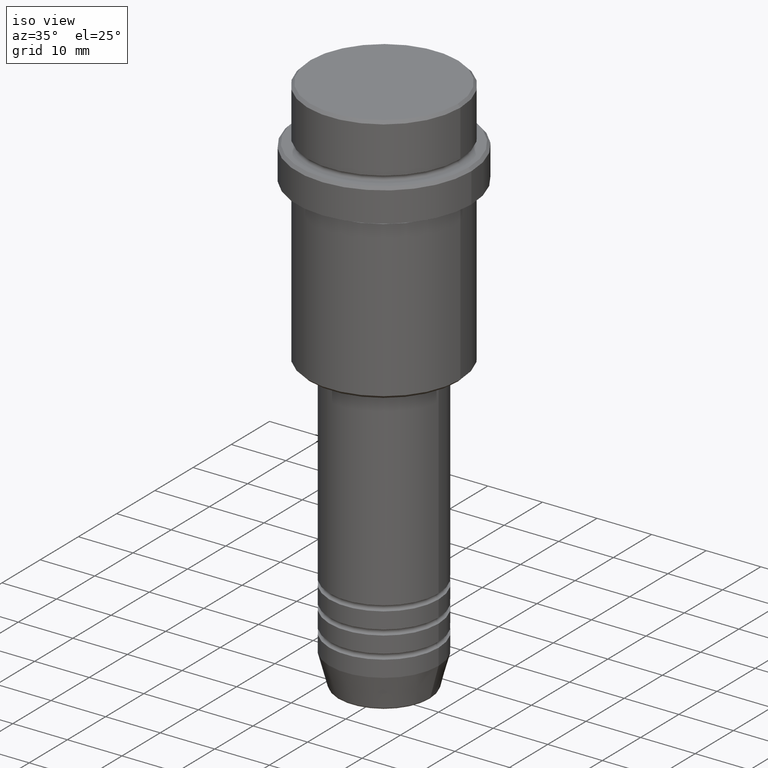
[diagram: clean part render]
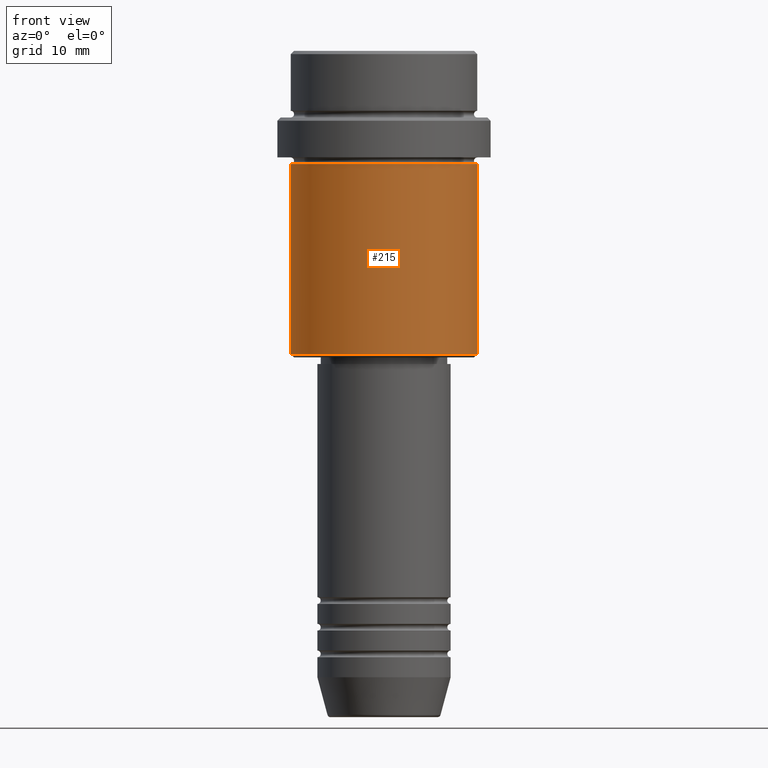
[diagram: tour spotlight — one face highlighted and labeled with its STEP entity id]
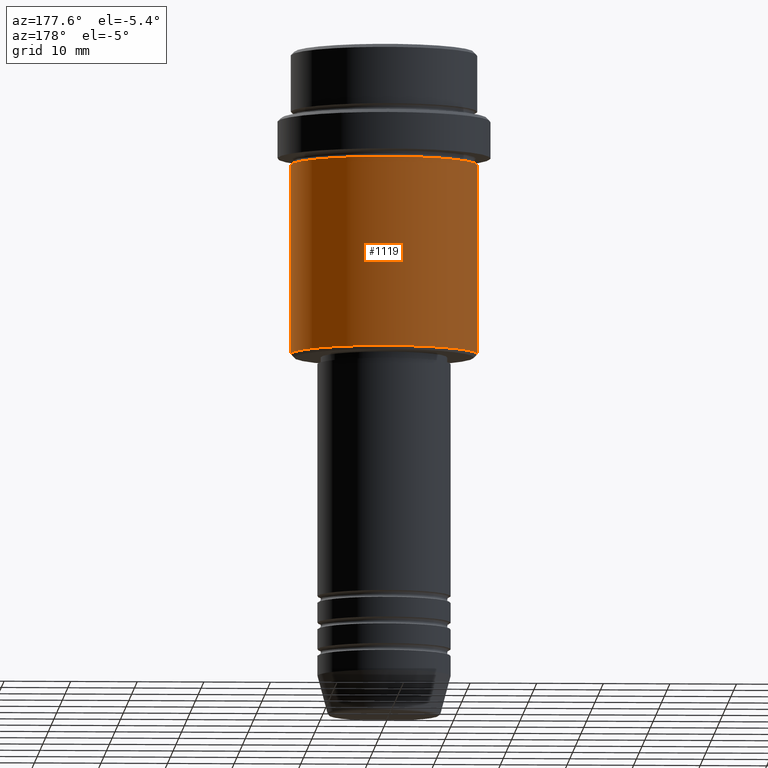
[diagram: tour spotlight — one face highlighted and labeled with its STEP entity id]
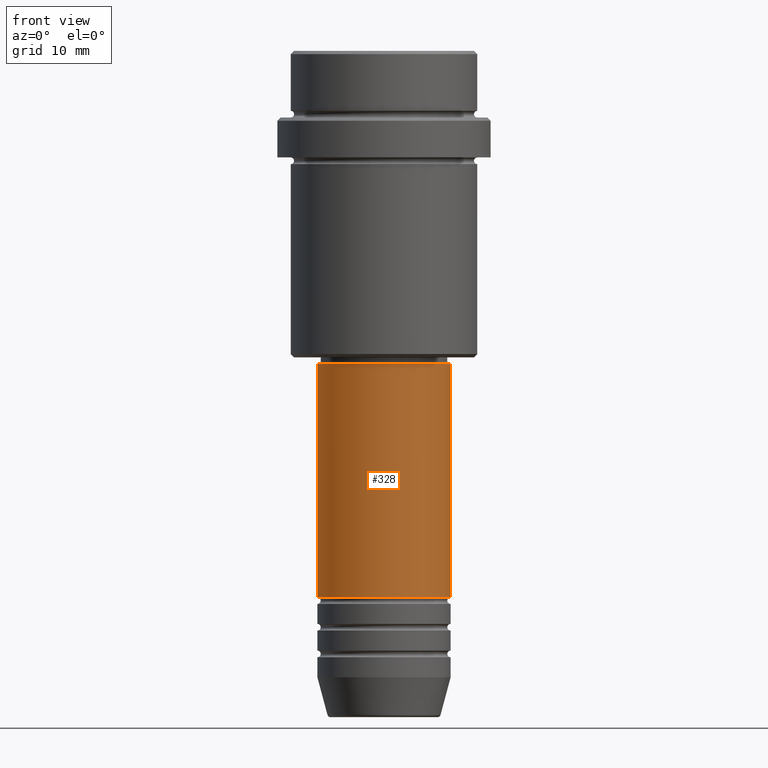
[diagram: tour spotlight — one face highlighted and labeled with its STEP entity id]
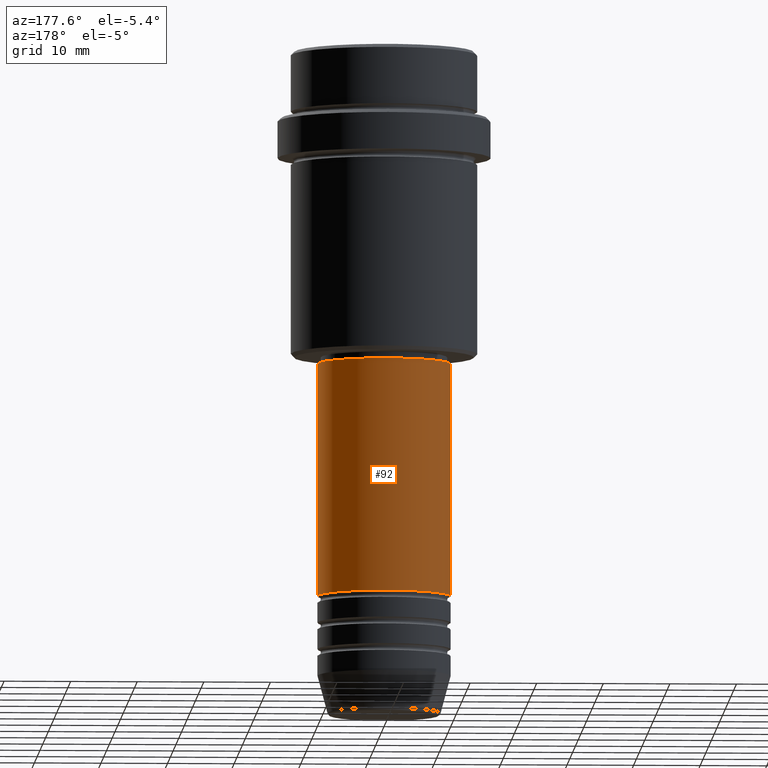
[diagram: tour spotlight — one face highlighted and labeled with its STEP entity id]
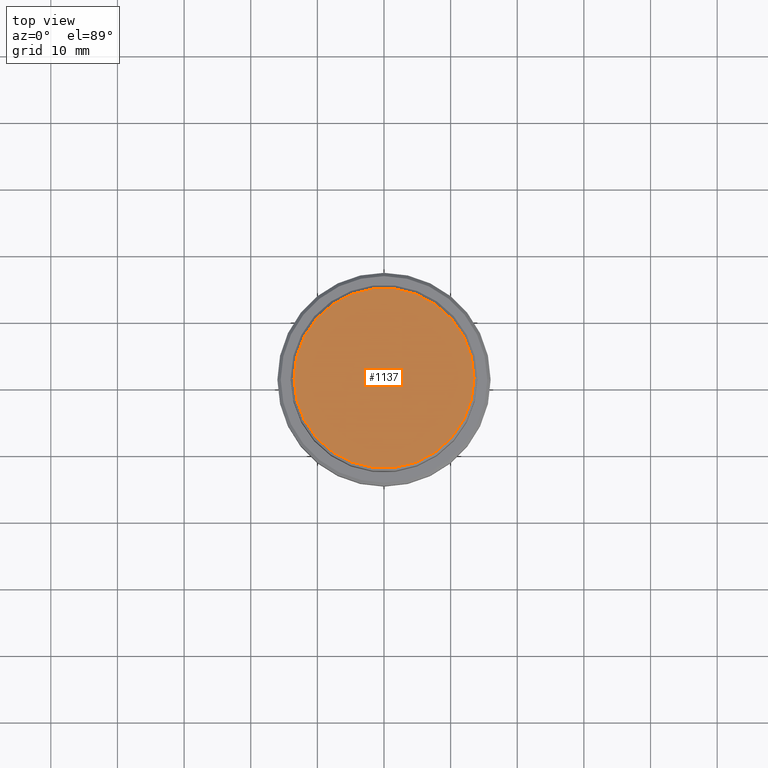
[diagram: tour spotlight — one face highlighted and labeled with its STEP entity id]
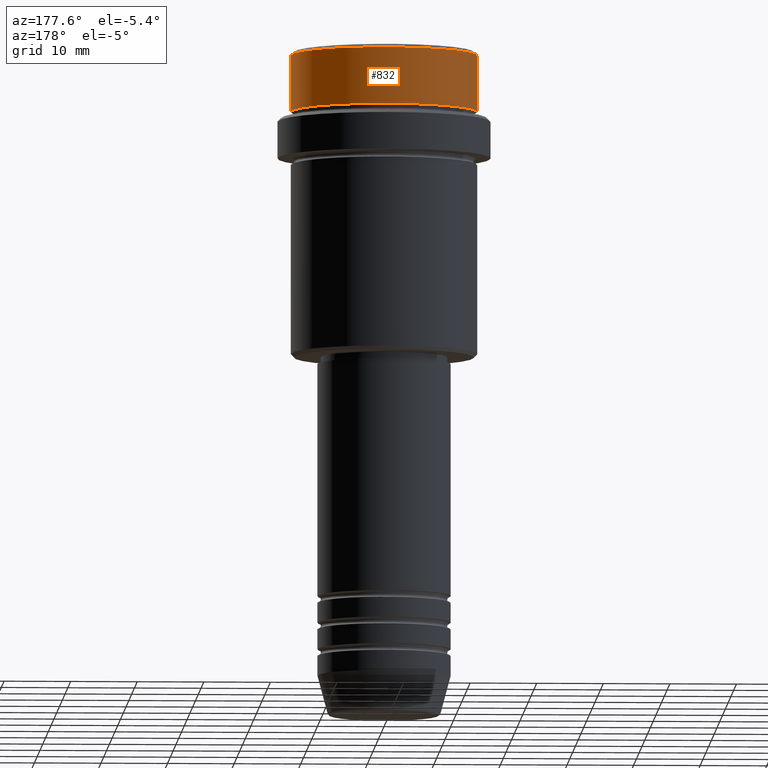
[diagram: tour spotlight — one face highlighted and labeled with its STEP entity id]
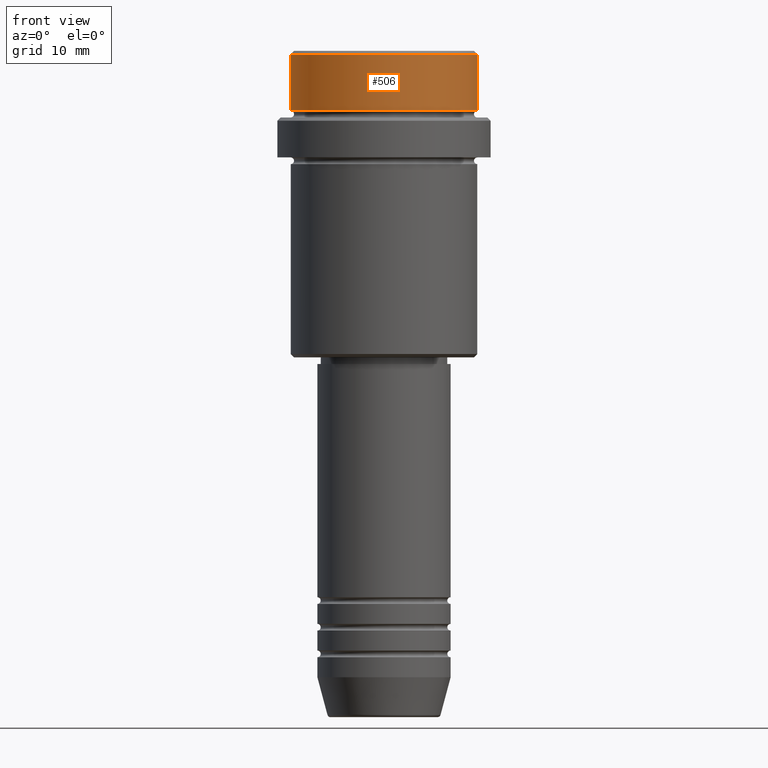
[diagram: tour spotlight — one face highlighted and labeled with its STEP entity id]
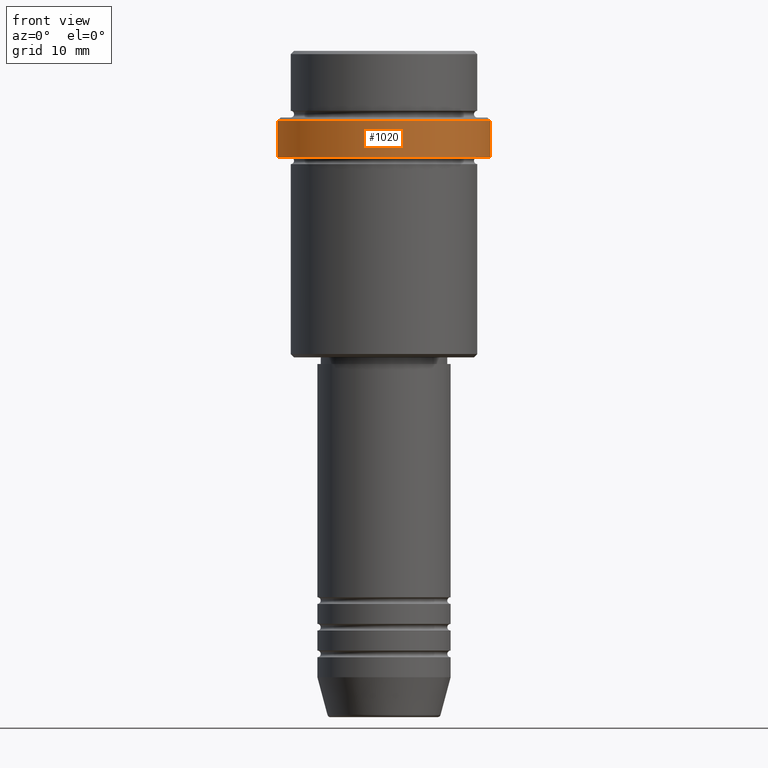
[diagram: tour spotlight — one face highlighted and labeled with its STEP entity id]
A machine part: a face-by-face anatomy tour. The part has 52 B-rep faces; the first image is the clean iso view, then the 8 largest visible faces are spotlighted one at a time (largest first), each with its STEP entity span.

Face 1 — front view, entity #215. In plain terms, the highlighted cylindrical surface (partial cylindrical patch) has radius 14 mm, axis along (-0, -0, 1).
Definition (entity closure, byte-faithful):
#47 = CIRCLE ( 'NONE', #849, 13.99999999999999112 ) ;
#96 = DIRECTION ( 'NONE',  ( -0.000000000000000000, -0.000000000000000000, 1.000000000000000000 ) ) ;
#126 = VERTEX_POINT ( 'NONE', #618 ) ;
#127 = CARTESIAN_POINT ( 'NONE',  ( 13.99999999999999467, 0.000000000000000000, 0.000000000000000000 ) ) ;
#140 = VECTOR ( 'NONE', #714, 1000.000000000000000 ) ;
#168 = VERTEX_POINT ( 'NONE', #399 ) ;
#215 = ADVANCED_FACE ( 'NONE', ( #852 ), #1190, .T. ) ;
#225 = VECTOR ( 'NONE', #1333, 1000.000000000000000 ) ;
#251 = AXIS2_PLACEMENT_3D ( 'NONE', #802, #918, #696 ) ;
#288 = CARTESIAN_POINT ( 'NONE',  ( -13.99999999999999467, 1.714505518806294046E-15, -45.50000000000000000 ) ) ;
#356 = CARTESIAN_POINT ( 'NONE',  ( -13.99999999999999112, 1.714505518806293849E-15, -17.00000000000001066 ) ) ;
#399 = CARTESIAN_POINT ( 'NONE',  ( 13.99999999999999112, 0.000000000000000000, -17.00000000000001066 ) ) ;
#408 = VERTEX_POINT ( 'NONE', #356 ) ;
#516 = DIRECTION ( 'NONE',  ( 1.000000000000000000, 0.000000000000000000, 0.000000000000000000 ) ) ;
#552 = CIRCLE ( 'NONE', #251, 13.99999999999999467 ) ;
#608 = VERTEX_POINT ( 'NONE', #288 ) ;
#614 = ORIENTED_EDGE ( 'NONE', *, *, #762, .F. ) ;
#618 = CARTESIAN_POINT ( 'NONE',  ( 13.99999999999999467, 0.000000000000000000, -45.50000000000000000 ) ) ;
#696 = DIRECTION ( 'NONE',  ( -1.000000000000000000, 0.000000000000000000, 0.000000000000000000 ) ) ;
#714 = DIRECTION ( 'NONE',  ( -0.000000000000000000, -0.000000000000000000, 1.000000000000000000 ) ) ;
#730 = CARTESIAN_POINT ( 'NONE',  ( 0.000000000000000000, 0.000000000000000000, 0.000000000000000000 ) ) ;
#745 = ORIENTED_EDGE ( 'NONE', *, *, #972, .F. ) ;
#759 = CARTESIAN_POINT ( 'NONE',  ( 0.000000000000000000, 0.000000000000000000, -17.00000000000001066 ) ) ;
#762 = EDGE_CURVE ( 'NONE', #408, #168, #47, .T. ) ;
#768 = EDGE_CURVE ( 'NONE', #126, #168, #1195, .T. ) ;
#802 = CARTESIAN_POINT ( 'NONE',  ( 0.000000000000000000, 0.000000000000000000, -45.50000000000000000 ) ) ;
#812 = EDGE_LOOP ( 'NONE', ( #745, #1314, #1015, #614 ) ) ;
#849 = AXIS2_PLACEMENT_3D ( 'NONE', #759, #96, #1201 ) ;
#852 = FACE_OUTER_BOUND ( 'NONE', #812, .T. ) ;
#893 = EDGE_CURVE ( 'NONE', #608, #126, #552, .T. ) ;
#918 = DIRECTION ( 'NONE',  ( -0.000000000000000000, -0.000000000000000000, 1.000000000000000000 ) ) ;
#972 = EDGE_CURVE ( 'NONE', #608, #408, #1041, .T. ) ;
#1015 = ORIENTED_EDGE ( 'NONE', *, *, #768, .T. ) ;
#1041 = LINE ( 'NONE', #1163, #140 ) ;
#1163 = CARTESIAN_POINT ( 'NONE',  ( -13.99999999999999467, 1.714505518806294046E-15, 0.000000000000000000 ) ) ;
#1190 = CYLINDRICAL_SURFACE ( 'NONE', #1369, 13.99999999999999467 ) ;
#1195 = LINE ( 'NONE', #127, #225 ) ;
#1201 = DIRECTION ( 'NONE',  ( 1.000000000000000000, 0.000000000000000000, 0.000000000000000000 ) ) ;
#1281 = DIRECTION ( 'NONE',  ( -0.000000000000000000, -0.000000000000000000, 1.000000000000000000 ) ) ;
#1314 = ORIENTED_EDGE ( 'NONE', *, *, #893, .T. ) ;
#1333 = DIRECTION ( 'NONE',  ( -0.000000000000000000, -0.000000000000000000, 1.000000000000000000 ) ) ;
#1369 = AXIS2_PLACEMENT_3D ( 'NONE', #730, #1281, #516 ) ;

Face 2 — auxiliary view, entity #1119. In plain terms, the highlighted cylindrical surface (partial cylindrical patch) has radius 14 mm, axis along (-0, -0, 1).
Definition (entity closure, byte-faithful):
#8 = EDGE_LOOP ( 'NONE', ( #535, #209, #504, #1087 ) ) ;
#126 = VERTEX_POINT ( 'NONE', #618 ) ;
#127 = CARTESIAN_POINT ( 'NONE',  ( 13.99999999999999467, 0.000000000000000000, 0.000000000000000000 ) ) ;
#140 = VECTOR ( 'NONE', #714, 1000.000000000000000 ) ;
#168 = VERTEX_POINT ( 'NONE', #399 ) ;
#201 = CYLINDRICAL_SURFACE ( 'NONE', #387, 13.99999999999999467 ) ;
#209 = ORIENTED_EDGE ( 'NONE', *, *, #972, .T. ) ;
#225 = VECTOR ( 'NONE', #1333, 1000.000000000000000 ) ;
#288 = CARTESIAN_POINT ( 'NONE',  ( -13.99999999999999467, 1.714505518806294046E-15, -45.50000000000000000 ) ) ;
#294 = CIRCLE ( 'NONE', #432, 13.99999999999999467 ) ;
#338 = FACE_OUTER_BOUND ( 'NONE', #8, .T. ) ;
#356 = CARTESIAN_POINT ( 'NONE',  ( -13.99999999999999112, 1.714505518806293849E-15, -17.00000000000001066 ) ) ;
#387 = AXIS2_PLACEMENT_3D ( 'NONE', #431, #540, #1307 ) ;
#399 = CARTESIAN_POINT ( 'NONE',  ( 13.99999999999999112, 0.000000000000000000, -17.00000000000001066 ) ) ;
#408 = VERTEX_POINT ( 'NONE', #356 ) ;
#431 = CARTESIAN_POINT ( 'NONE',  ( 0.000000000000000000, 0.000000000000000000, 0.000000000000000000 ) ) ;
#432 = AXIS2_PLACEMENT_3D ( 'NONE', #1146, #602, #931 ) ;
#504 = ORIENTED_EDGE ( 'NONE', *, *, #1172, .F. ) ;
#535 = ORIENTED_EDGE ( 'NONE', *, *, #946, .T. ) ;
#540 = DIRECTION ( 'NONE',  ( -0.000000000000000000, -0.000000000000000000, 1.000000000000000000 ) ) ;
#565 = DIRECTION ( 'NONE',  ( -0.000000000000000000, -0.000000000000000000, 1.000000000000000000 ) ) ;
#602 = DIRECTION ( 'NONE',  ( -0.000000000000000000, -0.000000000000000000, 1.000000000000000000 ) ) ;
#608 = VERTEX_POINT ( 'NONE', #288 ) ;
#618 = CARTESIAN_POINT ( 'NONE',  ( 13.99999999999999467, 0.000000000000000000, -45.50000000000000000 ) ) ;
#714 = DIRECTION ( 'NONE',  ( -0.000000000000000000, -0.000000000000000000, 1.000000000000000000 ) ) ;
#734 = AXIS2_PLACEMENT_3D ( 'NONE', #882, #565, #889 ) ;
#768 = EDGE_CURVE ( 'NONE', #126, #168, #1195, .T. ) ;
#882 = CARTESIAN_POINT ( 'NONE',  ( 0.000000000000000000, 0.000000000000000000, -17.00000000000001066 ) ) ;
#889 = DIRECTION ( 'NONE',  ( 1.000000000000000000, 0.000000000000000000, 0.000000000000000000 ) ) ;
#931 = DIRECTION ( 'NONE',  ( -1.000000000000000000, 0.000000000000000000, 0.000000000000000000 ) ) ;
#946 = EDGE_CURVE ( 'NONE', #126, #608, #294, .T. ) ;
#972 = EDGE_CURVE ( 'NONE', #608, #408, #1041, .T. ) ;
#1041 = LINE ( 'NONE', #1163, #140 ) ;
#1087 = ORIENTED_EDGE ( 'NONE', *, *, #768, .F. ) ;
#1119 = ADVANCED_FACE ( 'NONE', ( #338 ), #201, .T. ) ;
#1127 = CIRCLE ( 'NONE', #734, 13.99999999999999112 ) ;
#1146 = CARTESIAN_POINT ( 'NONE',  ( 0.000000000000000000, 0.000000000000000000, -45.50000000000000000 ) ) ;
#1163 = CARTESIAN_POINT ( 'NONE',  ( -13.99999999999999467, 1.714505518806294046E-15, 0.000000000000000000 ) ) ;
#1172 = EDGE_CURVE ( 'NONE', #168, #408, #1127, .T. ) ;
#1195 = LINE ( 'NONE', #127, #225 ) ;
#1307 = DIRECTION ( 'NONE',  ( 1.000000000000000000, 0.000000000000000000, 0.000000000000000000 ) ) ;
#1333 = DIRECTION ( 'NONE',  ( -0.000000000000000000, -0.000000000000000000, 1.000000000000000000 ) ) ;

Face 3 — front view, entity #328. In plain terms, the highlighted cylindrical surface (partial cylindrical patch) has radius 10 mm, axis along (-0, -0, 1).
Definition (entity closure, byte-faithful):
#17 = CYLINDRICAL_SURFACE ( 'NONE', #157, 10.00000000000000178 ) ;
#26 = CARTESIAN_POINT ( 'NONE',  ( 0.000000000000000000, 0.000000000000000000, 0.000000000000000000 ) ) ;
#31 = EDGE_CURVE ( 'NONE', #1044, #763, #1368, .T. ) ;
#61 = VERTEX_POINT ( 'NONE', #252 ) ;
#107 = VECTOR ( 'NONE', #824, 1000.000000000000000 ) ;
#135 = DIRECTION ( 'NONE',  ( -0.000000000000000000, -0.000000000000000000, 1.000000000000000000 ) ) ;
#157 = AXIS2_PLACEMENT_3D ( 'NONE', #26, #1117, #892 ) ;
#180 = ORIENTED_EDGE ( 'NONE', *, *, #476, .T. ) ;
#246 = CARTESIAN_POINT ( 'NONE',  ( -10.00000000000000178, 1.224646799147353454E-15, 0.000000000000000000 ) ) ;
#252 = CARTESIAN_POINT ( 'NONE',  ( 10.00000000000000000, 0.000000000000000000, -81.99999999999987210 ) ) ;
#266 = DIRECTION ( 'NONE',  ( -0.000000000000000000, -0.000000000000000000, 1.000000000000000000 ) ) ;
#278 = CARTESIAN_POINT ( 'NONE',  ( -10.00000000000000178, 1.224646799147353454E-15, -47.00000000000000000 ) ) ;
#328 = ADVANCED_FACE ( 'NONE', ( #1112 ), #17, .T. ) ;
#385 = AXIS2_PLACEMENT_3D ( 'NONE', #907, #266, #463 ) ;
#463 = DIRECTION ( 'NONE',  ( 1.000000000000000000, 0.000000000000000000, 0.000000000000000000 ) ) ;
#469 = CARTESIAN_POINT ( 'NONE',  ( 10.00000000000000178, 0.000000000000000000, 0.000000000000000000 ) ) ;
#476 = EDGE_CURVE ( 'NONE', #61, #763, #1347, .T. ) ;
#484 = LINE ( 'NONE', #246, #1167 ) ;
#522 = AXIS2_PLACEMENT_3D ( 'NONE', #712, #944, #922 ) ;
#600 = ORIENTED_EDGE ( 'NONE', *, *, #31, .F. ) ;
#620 = ORIENTED_EDGE ( 'NONE', *, *, #886, .F. ) ;
#712 = CARTESIAN_POINT ( 'NONE',  ( 0.000000000000000000, 0.000000000000000000, -47.00000000000000000 ) ) ;
#763 = VERTEX_POINT ( 'NONE', #1315 ) ;
#769 = VERTEX_POINT ( 'NONE', #1095 ) ;
#807 = EDGE_LOOP ( 'NONE', ( #620, #1254, #180, #600 ) ) ;
#824 = DIRECTION ( 'NONE',  ( -0.000000000000000000, -0.000000000000000000, 1.000000000000000000 ) ) ;
#886 = EDGE_CURVE ( 'NONE', #769, #1044, #484, .T. ) ;
#892 = DIRECTION ( 'NONE',  ( 1.000000000000000000, 0.000000000000000000, 0.000000000000000000 ) ) ;
#907 = CARTESIAN_POINT ( 'NONE',  ( 0.000000000000000000, 0.000000000000000000, -81.99999999999987210 ) ) ;
#922 = DIRECTION ( 'NONE',  ( 1.000000000000000000, 0.000000000000000000, 0.000000000000000000 ) ) ;
#927 = EDGE_CURVE ( 'NONE', #769, #61, #1028, .T. ) ;
#944 = DIRECTION ( 'NONE',  ( -0.000000000000000000, -0.000000000000000000, 1.000000000000000000 ) ) ;
#1028 = CIRCLE ( 'NONE', #385, 10.00000000000000000 ) ;
#1044 = VERTEX_POINT ( 'NONE', #278 ) ;
#1095 = CARTESIAN_POINT ( 'NONE',  ( -10.00000000000000000, 1.224646799147353256E-15, -81.99999999999987210 ) ) ;
#1112 = FACE_OUTER_BOUND ( 'NONE', #807, .T. ) ;
#1117 = DIRECTION ( 'NONE',  ( -0.000000000000000000, -0.000000000000000000, 1.000000000000000000 ) ) ;
#1167 = VECTOR ( 'NONE', #135, 1000.000000000000000 ) ;
#1254 = ORIENTED_EDGE ( 'NONE', *, *, #927, .T. ) ;
#1315 = CARTESIAN_POINT ( 'NONE',  ( 10.00000000000000178, 0.000000000000000000, -47.00000000000000000 ) ) ;
#1347 = LINE ( 'NONE', #469, #107 ) ;
#1368 = CIRCLE ( 'NONE', #522, 10.00000000000000178 ) ;

Face 4 — auxiliary view, entity #92. In plain terms, the highlighted cylindrical surface (partial cylindrical patch) has radius 10 mm, axis along (-0, -0, 1).
Definition (entity closure, byte-faithful):
#21 = DIRECTION ( 'NONE',  ( -0.000000000000000000, -0.000000000000000000, 1.000000000000000000 ) ) ;
#42 = CYLINDRICAL_SURFACE ( 'NONE', #658, 10.00000000000000178 ) ;
#61 = VERTEX_POINT ( 'NONE', #252 ) ;
#92 = ADVANCED_FACE ( 'NONE', ( #1140 ), #42, .T. ) ;
#107 = VECTOR ( 'NONE', #824, 1000.000000000000000 ) ;
#135 = DIRECTION ( 'NONE',  ( -0.000000000000000000, -0.000000000000000000, 1.000000000000000000 ) ) ;
#150 = DIRECTION ( 'NONE',  ( 1.000000000000000000, 0.000000000000000000, 0.000000000000000000 ) ) ;
#246 = CARTESIAN_POINT ( 'NONE',  ( -10.00000000000000178, 1.224646799147353454E-15, 0.000000000000000000 ) ) ;
#252 = CARTESIAN_POINT ( 'NONE',  ( 10.00000000000000000, 0.000000000000000000, -81.99999999999987210 ) ) ;
#256 = CARTESIAN_POINT ( 'NONE',  ( 0.000000000000000000, 0.000000000000000000, 0.000000000000000000 ) ) ;
#268 = CIRCLE ( 'NONE', #1072, 10.00000000000000000 ) ;
#272 = CIRCLE ( 'NONE', #731, 10.00000000000000178 ) ;
#277 = ORIENTED_EDGE ( 'NONE', *, *, #476, .F. ) ;
#278 = CARTESIAN_POINT ( 'NONE',  ( -10.00000000000000178, 1.224646799147353454E-15, -47.00000000000000000 ) ) ;
#381 = CARTESIAN_POINT ( 'NONE',  ( 0.000000000000000000, 0.000000000000000000, -81.99999999999987210 ) ) ;
#414 = EDGE_CURVE ( 'NONE', #61, #769, #268, .T. ) ;
#451 = DIRECTION ( 'NONE',  ( 1.000000000000000000, 0.000000000000000000, 0.000000000000000000 ) ) ;
#464 = DIRECTION ( 'NONE',  ( -0.000000000000000000, -0.000000000000000000, 1.000000000000000000 ) ) ;
#469 = CARTESIAN_POINT ( 'NONE',  ( 10.00000000000000178, 0.000000000000000000, 0.000000000000000000 ) ) ;
#476 = EDGE_CURVE ( 'NONE', #61, #763, #1347, .T. ) ;
#484 = LINE ( 'NONE', #246, #1167 ) ;
#658 = AXIS2_PLACEMENT_3D ( 'NONE', #256, #697, #150 ) ;
#697 = DIRECTION ( 'NONE',  ( -0.000000000000000000, -0.000000000000000000, 1.000000000000000000 ) ) ;
#731 = AXIS2_PLACEMENT_3D ( 'NONE', #1290, #21, #451 ) ;
#763 = VERTEX_POINT ( 'NONE', #1315 ) ;
#769 = VERTEX_POINT ( 'NONE', #1095 ) ;
#824 = DIRECTION ( 'NONE',  ( -0.000000000000000000, -0.000000000000000000, 1.000000000000000000 ) ) ;
#886 = EDGE_CURVE ( 'NONE', #769, #1044, #484, .T. ) ;
#993 = ORIENTED_EDGE ( 'NONE', *, *, #1217, .F. ) ;
#1044 = VERTEX_POINT ( 'NONE', #278 ) ;
#1072 = AXIS2_PLACEMENT_3D ( 'NONE', #381, #464, #1341 ) ;
#1095 = CARTESIAN_POINT ( 'NONE',  ( -10.00000000000000000, 1.224646799147353256E-15, -81.99999999999987210 ) ) ;
#1140 = FACE_OUTER_BOUND ( 'NONE', #1288, .T. ) ;
#1167 = VECTOR ( 'NONE', #135, 1000.000000000000000 ) ;
#1217 = EDGE_CURVE ( 'NONE', #763, #1044, #272, .T. ) ;
#1285 = ORIENTED_EDGE ( 'NONE', *, *, #886, .T. ) ;
#1288 = EDGE_LOOP ( 'NONE', ( #1395, #1285, #993, #277 ) ) ;
#1290 = CARTESIAN_POINT ( 'NONE',  ( 0.000000000000000000, 0.000000000000000000, -47.00000000000000000 ) ) ;
#1315 = CARTESIAN_POINT ( 'NONE',  ( 10.00000000000000178, 0.000000000000000000, -47.00000000000000000 ) ) ;
#1341 = DIRECTION ( 'NONE',  ( 1.000000000000000000, 0.000000000000000000, 0.000000000000000000 ) ) ;
#1347 = LINE ( 'NONE', #469, #107 ) ;
#1395 = ORIENTED_EDGE ( 'NONE', *, *, #414, .T. ) ;

Face 5 — top view, entity #1137. In plain terms, the highlighted planar face has unit normal (0, -0, 1).
Definition (entity closure, byte-faithful):
#125 = DIRECTION ( 'NONE',  ( 1.000000000000000000, 0.000000000000000000, 0.000000000000000000 ) ) ;
#153 = EDGE_CURVE ( 'NONE', #968, #842, #1183, .T. ) ;
#245 = AXIS2_PLACEMENT_3D ( 'NONE', #1294, #1056, #404 ) ;
#396 = DIRECTION ( 'NONE',  ( -0.000000000000000000, -0.000000000000000000, 1.000000000000000000 ) ) ;
#397 = EDGE_LOOP ( 'NONE', ( #612, #1165 ) ) ;
#404 = DIRECTION ( 'NONE',  ( 1.000000000000000000, 0.000000000000000000, 0.000000000000000000 ) ) ;
#436 = AXIS2_PLACEMENT_3D ( 'NONE', #1205, #551, #125 ) ;
#503 = AXIS2_PLACEMENT_3D ( 'NONE', #1173, #396, #736 ) ;
#551 = DIRECTION ( 'NONE',  ( 0.000000000000000000, -0.000000000000000000, 1.000000000000000000 ) ) ;
#567 = CARTESIAN_POINT ( 'NONE',  ( 13.50000000000001243, 1.683889348827611245E-15, 0.000000000000000000 ) ) ;
#582 = CARTESIAN_POINT ( 'NONE',  ( -13.50000000000001243, 0.000000000000000000, 0.000000000000000000 ) ) ;
#612 = ORIENTED_EDGE ( 'NONE', *, *, #153, .T. ) ;
#641 = PLANE ( 'NONE',  #436 ) ;
#653 = FACE_OUTER_BOUND ( 'NONE', #397, .T. ) ;
#736 = DIRECTION ( 'NONE',  ( 1.000000000000000000, 0.000000000000000000, 0.000000000000000000 ) ) ;
#842 = VERTEX_POINT ( 'NONE', #567 ) ;
#968 = VERTEX_POINT ( 'NONE', #582 ) ;
#1056 = DIRECTION ( 'NONE',  ( -0.000000000000000000, -0.000000000000000000, 1.000000000000000000 ) ) ;
#1084 = EDGE_CURVE ( 'NONE', #842, #968, #1125, .T. ) ;
#1125 = CIRCLE ( 'NONE', #503, 13.50000000000001243 ) ;
#1137 = ADVANCED_FACE ( 'NONE', ( #653 ), #641, .T. ) ;
#1165 = ORIENTED_EDGE ( 'NONE', *, *, #1084, .T. ) ;
#1173 = CARTESIAN_POINT ( 'NONE',  ( 0.000000000000000000, 0.000000000000000000, 0.000000000000000000 ) ) ;
#1183 = CIRCLE ( 'NONE', #245, 13.50000000000001243 ) ;
#1205 = CARTESIAN_POINT ( 'NONE',  ( 0.000000000000000000, 0.000000000000000000, 0.000000000000000000 ) ) ;
#1294 = CARTESIAN_POINT ( 'NONE',  ( 0.000000000000000000, 0.000000000000000000, 0.000000000000000000 ) ) ;

Face 6 — auxiliary view, entity #832. In plain terms, the highlighted cylindrical surface (partial cylindrical patch) has radius 14 mm, axis along (-0, -0, 1).
Definition (entity closure, byte-faithful):
#16 = FACE_OUTER_BOUND ( 'NONE', #434, .T. ) ;
#87 = AXIS2_PLACEMENT_3D ( 'NONE', #234, #1416, #655 ) ;
#100 = LINE ( 'NONE', #1313, #1260 ) ;
#109 = AXIS2_PLACEMENT_3D ( 'NONE', #615, #412, #1186 ) ;
#208 = LINE ( 'NONE', #523, #937 ) ;
#223 = EDGE_CURVE ( 'NONE', #1405, #977, #208, .T. ) ;
#234 = CARTESIAN_POINT ( 'NONE',  ( 0.000000000000000000, 0.000000000000000000, 0.000000000000000000 ) ) ;
#244 = CARTESIAN_POINT ( 'NONE',  ( -13.99999999999999467, 1.714505518806294046E-15, -0.4999999999999900080 ) ) ;
#357 = ORIENTED_EDGE ( 'NONE', *, *, #223, .F. ) ;
#412 = DIRECTION ( 'NONE',  ( -0.000000000000000000, -0.000000000000000000, 1.000000000000000000 ) ) ;
#421 = ORIENTED_EDGE ( 'NONE', *, *, #663, .T. ) ;
#434 = EDGE_LOOP ( 'NONE', ( #421, #571, #958, #357 ) ) ;
#478 = AXIS2_PLACEMENT_3D ( 'NONE', #959, #953, #607 ) ;
#523 = CARTESIAN_POINT ( 'NONE',  ( 13.99999999999999467, 0.000000000000000000, 0.000000000000000000 ) ) ;
#536 = CARTESIAN_POINT ( 'NONE',  ( -13.99999999999999112, 1.714505518806293849E-15, -8.999999999999998224 ) ) ;
#571 = ORIENTED_EDGE ( 'NONE', *, *, #1177, .T. ) ;
#607 = DIRECTION ( 'NONE',  ( 1.000000000000000000, 0.000000000000000000, 0.000000000000000000 ) ) ;
#615 = CARTESIAN_POINT ( 'NONE',  ( 0.000000000000000000, 0.000000000000000000, -8.999999999999998224 ) ) ;
#644 = DIRECTION ( 'NONE',  ( -0.000000000000000000, -0.000000000000000000, 1.000000000000000000 ) ) ;
#655 = DIRECTION ( 'NONE',  ( 1.000000000000000000, 0.000000000000000000, 0.000000000000000000 ) ) ;
#663 = EDGE_CURVE ( 'NONE', #1405, #737, #1234, .T. ) ;
#688 = CIRCLE ( 'NONE', #478, 13.99999999999999467 ) ;
#737 = VERTEX_POINT ( 'NONE', #536 ) ;
#832 = ADVANCED_FACE ( 'NONE', ( #16 ), #980, .T. ) ;
#937 = VECTOR ( 'NONE', #644, 1000.000000000000000 ) ;
#952 = CARTESIAN_POINT ( 'NONE',  ( 13.99999999999999112, 0.000000000000000000, -8.999999999999998224 ) ) ;
#953 = DIRECTION ( 'NONE',  ( 0.000000000000000000, 0.000000000000000000, -1.000000000000000000 ) ) ;
#958 = ORIENTED_EDGE ( 'NONE', *, *, #997, .T. ) ;
#959 = CARTESIAN_POINT ( 'NONE',  ( 0.000000000000000000, 0.000000000000000000, -0.4999999999999900080 ) ) ;
#977 = VERTEX_POINT ( 'NONE', #1401 ) ;
#980 = CYLINDRICAL_SURFACE ( 'NONE', #87, 13.99999999999999467 ) ;
#997 = EDGE_CURVE ( 'NONE', #1321, #977, #688, .T. ) ;
#1177 = EDGE_CURVE ( 'NONE', #737, #1321, #100, .T. ) ;
#1186 = DIRECTION ( 'NONE',  ( 1.000000000000000000, 0.000000000000000000, 0.000000000000000000 ) ) ;
#1199 = DIRECTION ( 'NONE',  ( -0.000000000000000000, -0.000000000000000000, 1.000000000000000000 ) ) ;
#1234 = CIRCLE ( 'NONE', #109, 13.99999999999999112 ) ;
#1260 = VECTOR ( 'NONE', #1199, 1000.000000000000000 ) ;
#1313 = CARTESIAN_POINT ( 'NONE',  ( -13.99999999999999467, 1.714505518806294046E-15, 0.000000000000000000 ) ) ;
#1321 = VERTEX_POINT ( 'NONE', #244 ) ;
#1401 = CARTESIAN_POINT ( 'NONE',  ( 13.99999999999999467, 0.000000000000000000, -0.4999999999999900080 ) ) ;
#1405 = VERTEX_POINT ( 'NONE', #952 ) ;
#1416 = DIRECTION ( 'NONE',  ( -0.000000000000000000, -0.000000000000000000, 1.000000000000000000 ) ) ;

Face 7 — front view, entity #506. In plain terms, the highlighted cylindrical surface (partial cylindrical patch) has radius 14 mm, axis along (-0, -0, 1).
Definition (entity closure, byte-faithful):
#14 = DIRECTION ( 'NONE',  ( 1.000000000000000000, 0.000000000000000000, 0.000000000000000000 ) ) ;
#20 = ORIENTED_EDGE ( 'NONE', *, *, #1177, .F. ) ;
#45 = CYLINDRICAL_SURFACE ( 'NONE', #939, 13.99999999999999467 ) ;
#100 = LINE ( 'NONE', #1313, #1260 ) ;
#171 = CARTESIAN_POINT ( 'NONE',  ( 0.000000000000000000, 0.000000000000000000, 0.000000000000000000 ) ) ;
#208 = LINE ( 'NONE', #523, #937 ) ;
#223 = EDGE_CURVE ( 'NONE', #1405, #977, #208, .T. ) ;
#244 = CARTESIAN_POINT ( 'NONE',  ( -13.99999999999999467, 1.714505518806294046E-15, -0.4999999999999900080 ) ) ;
#253 = CIRCLE ( 'NONE', #621, 13.99999999999999467 ) ;
#274 = EDGE_CURVE ( 'NONE', #737, #1405, #1232, .T. ) ;
#312 = AXIS2_PLACEMENT_3D ( 'NONE', #413, #744, #1004 ) ;
#314 = CARTESIAN_POINT ( 'NONE',  ( 0.000000000000000000, 0.000000000000000000, -0.4999999999999900080 ) ) ;
#362 = DIRECTION ( 'NONE',  ( -0.000000000000000000, -0.000000000000000000, 1.000000000000000000 ) ) ;
#395 = ORIENTED_EDGE ( 'NONE', *, *, #274, .T. ) ;
#413 = CARTESIAN_POINT ( 'NONE',  ( 0.000000000000000000, 0.000000000000000000, -8.999999999999998224 ) ) ;
#424 = EDGE_LOOP ( 'NONE', ( #20, #395, #629, #862 ) ) ;
#506 = ADVANCED_FACE ( 'NONE', ( #1240 ), #45, .T. ) ;
#523 = CARTESIAN_POINT ( 'NONE',  ( 13.99999999999999467, 0.000000000000000000, 0.000000000000000000 ) ) ;
#536 = CARTESIAN_POINT ( 'NONE',  ( -13.99999999999999112, 1.714505518806293849E-15, -8.999999999999998224 ) ) ;
#559 = DIRECTION ( 'NONE',  ( 0.000000000000000000, 0.000000000000000000, -1.000000000000000000 ) ) ;
#609 = DIRECTION ( 'NONE',  ( 1.000000000000000000, 0.000000000000000000, 0.000000000000000000 ) ) ;
#621 = AXIS2_PLACEMENT_3D ( 'NONE', #314, #559, #14 ) ;
#629 = ORIENTED_EDGE ( 'NONE', *, *, #223, .T. ) ;
#644 = DIRECTION ( 'NONE',  ( -0.000000000000000000, -0.000000000000000000, 1.000000000000000000 ) ) ;
#737 = VERTEX_POINT ( 'NONE', #536 ) ;
#744 = DIRECTION ( 'NONE',  ( -0.000000000000000000, -0.000000000000000000, 1.000000000000000000 ) ) ;
#862 = ORIENTED_EDGE ( 'NONE', *, *, #1246, .T. ) ;
#937 = VECTOR ( 'NONE', #644, 1000.000000000000000 ) ;
#939 = AXIS2_PLACEMENT_3D ( 'NONE', #171, #362, #609 ) ;
#952 = CARTESIAN_POINT ( 'NONE',  ( 13.99999999999999112, 0.000000000000000000, -8.999999999999998224 ) ) ;
#977 = VERTEX_POINT ( 'NONE', #1401 ) ;
#1004 = DIRECTION ( 'NONE',  ( 1.000000000000000000, 0.000000000000000000, 0.000000000000000000 ) ) ;
#1177 = EDGE_CURVE ( 'NONE', #737, #1321, #100, .T. ) ;
#1199 = DIRECTION ( 'NONE',  ( -0.000000000000000000, -0.000000000000000000, 1.000000000000000000 ) ) ;
#1232 = CIRCLE ( 'NONE', #312, 13.99999999999999112 ) ;
#1240 = FACE_OUTER_BOUND ( 'NONE', #424, .T. ) ;
#1246 = EDGE_CURVE ( 'NONE', #977, #1321, #253, .T. ) ;
#1260 = VECTOR ( 'NONE', #1199, 1000.000000000000000 ) ;
#1313 = CARTESIAN_POINT ( 'NONE',  ( -13.99999999999999467, 1.714505518806294046E-15, 0.000000000000000000 ) ) ;
#1321 = VERTEX_POINT ( 'NONE', #244 ) ;
#1401 = CARTESIAN_POINT ( 'NONE',  ( 13.99999999999999467, 0.000000000000000000, -0.4999999999999900080 ) ) ;
#1405 = VERTEX_POINT ( 'NONE', #952 ) ;

Face 8 — front view, entity #1020. In plain terms, the highlighted cylindrical surface (partial cylindrical patch) has radius 16 mm, axis along (-0, -0, 1).
Definition (entity closure, byte-faithful):
#37 = DIRECTION ( 'NONE',  ( 1.000000000000000000, 0.000000000000000000, 0.000000000000000000 ) ) ;
#124 = ORIENTED_EDGE ( 'NONE', *, *, #778, .F. ) ;
#217 = DIRECTION ( 'NONE',  ( 0.000000000000000000, 0.000000000000000000, -1.000000000000000000 ) ) ;
#273 = DIRECTION ( 'NONE',  ( -0.000000000000000000, -0.000000000000000000, 1.000000000000000000 ) ) ;
#333 = LINE ( 'NONE', #789, #1027 ) ;
#355 = DIRECTION ( 'NONE',  ( -0.000000000000000000, -0.000000000000000000, 1.000000000000000000 ) ) ;
#376 = ORIENTED_EDGE ( 'NONE', *, *, #1363, .T. ) ;
#402 = ORIENTED_EDGE ( 'NONE', *, *, #1118, .T. ) ;
#456 = AXIS2_PLACEMENT_3D ( 'NONE', #1269, #273, #1264 ) ;
#534 = CARTESIAN_POINT ( 'NONE',  ( 0.000000000000000000, 0.000000000000000000, -10.49999999999999467 ) ) ;
#590 = CARTESIAN_POINT ( 'NONE',  ( -15.99999999999999289, 1.959434878635764343E-15, -10.49999999999999467 ) ) ;
#598 = AXIS2_PLACEMENT_3D ( 'NONE', #799, #699, #37 ) ;
#613 = CYLINDRICAL_SURFACE ( 'NONE', #456, 15.99999999999999289 ) ;
#648 = VERTEX_POINT ( 'NONE', #955 ) ;
#662 = DIRECTION ( 'NONE',  ( 1.000000000000000000, 0.000000000000000000, 0.000000000000000000 ) ) ;
#689 = AXIS2_PLACEMENT_3D ( 'NONE', #534, #217, #662 ) ;
#699 = DIRECTION ( 'NONE',  ( -0.000000000000000000, -0.000000000000000000, 1.000000000000000000 ) ) ;
#778 = EDGE_CURVE ( 'NONE', #854, #1370, #333, .T. ) ;
#789 = CARTESIAN_POINT ( 'NONE',  ( -15.99999999999999289, 1.959434878635764343E-15, 0.000000000000000000 ) ) ;
#791 = ORIENTED_EDGE ( 'NONE', *, *, #956, .T. ) ;
#799 = CARTESIAN_POINT ( 'NONE',  ( 0.000000000000000000, 0.000000000000000000, -16.00000000000000000 ) ) ;
#854 = VERTEX_POINT ( 'NONE', #1012 ) ;
#891 = DIRECTION ( 'NONE',  ( -0.000000000000000000, -0.000000000000000000, 1.000000000000000000 ) ) ;
#951 = VERTEX_POINT ( 'NONE', #1036 ) ;
#955 = CARTESIAN_POINT ( 'NONE',  ( 15.99999999999999289, 0.000000000000000000, -10.49999999999999467 ) ) ;
#956 = EDGE_CURVE ( 'NONE', #951, #648, #1259, .T. ) ;
#1012 = CARTESIAN_POINT ( 'NONE',  ( -15.99999999999999289, 1.959434878635764343E-15, -16.00000000000000000 ) ) ;
#1020 = ADVANCED_FACE ( 'NONE', ( #1284 ), #613, .T. ) ;
#1027 = VECTOR ( 'NONE', #891, 1000.000000000000000 ) ;
#1030 = CIRCLE ( 'NONE', #689, 15.99999999999999289 ) ;
#1036 = CARTESIAN_POINT ( 'NONE',  ( 15.99999999999999289, 0.000000000000000000, -16.00000000000000000 ) ) ;
#1118 = EDGE_CURVE ( 'NONE', #648, #1370, #1030, .T. ) ;
#1191 = CIRCLE ( 'NONE', #598, 15.99999999999999289 ) ;
#1192 = EDGE_LOOP ( 'NONE', ( #124, #376, #791, #402 ) ) ;
#1257 = VECTOR ( 'NONE', #355, 1000.000000000000000 ) ;
#1259 = LINE ( 'NONE', #1340, #1257 ) ;
#1264 = DIRECTION ( 'NONE',  ( 1.000000000000000000, 0.000000000000000000, 0.000000000000000000 ) ) ;
#1269 = CARTESIAN_POINT ( 'NONE',  ( 0.000000000000000000, 0.000000000000000000, 0.000000000000000000 ) ) ;
#1284 = FACE_OUTER_BOUND ( 'NONE', #1192, .T. ) ;
#1340 = CARTESIAN_POINT ( 'NONE',  ( 15.99999999999999289, 0.000000000000000000, 0.000000000000000000 ) ) ;
#1363 = EDGE_CURVE ( 'NONE', #854, #951, #1191, .T. ) ;
#1370 = VERTEX_POINT ( 'NONE', #590 ) ;